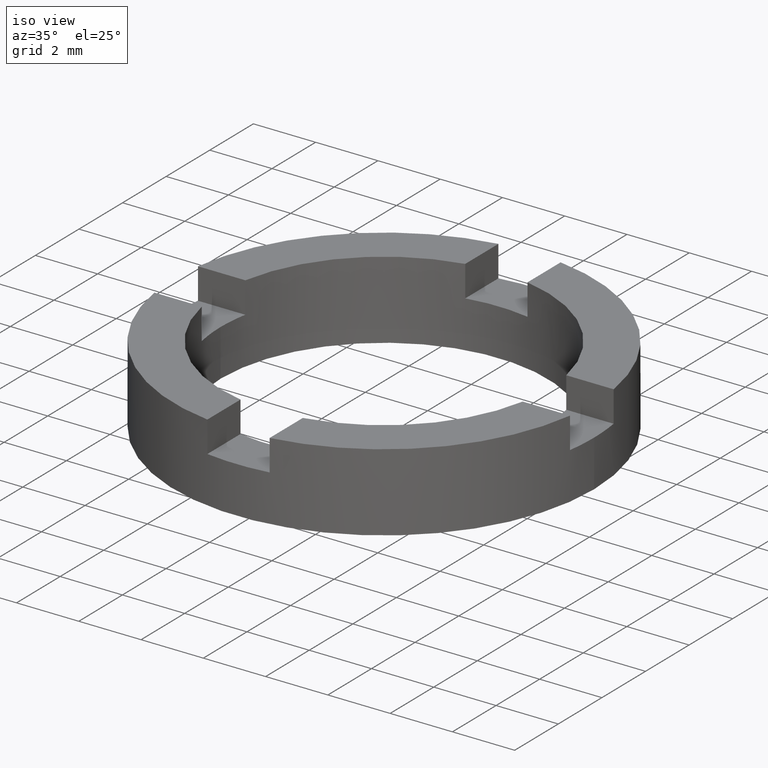
[diagram: clean part render]
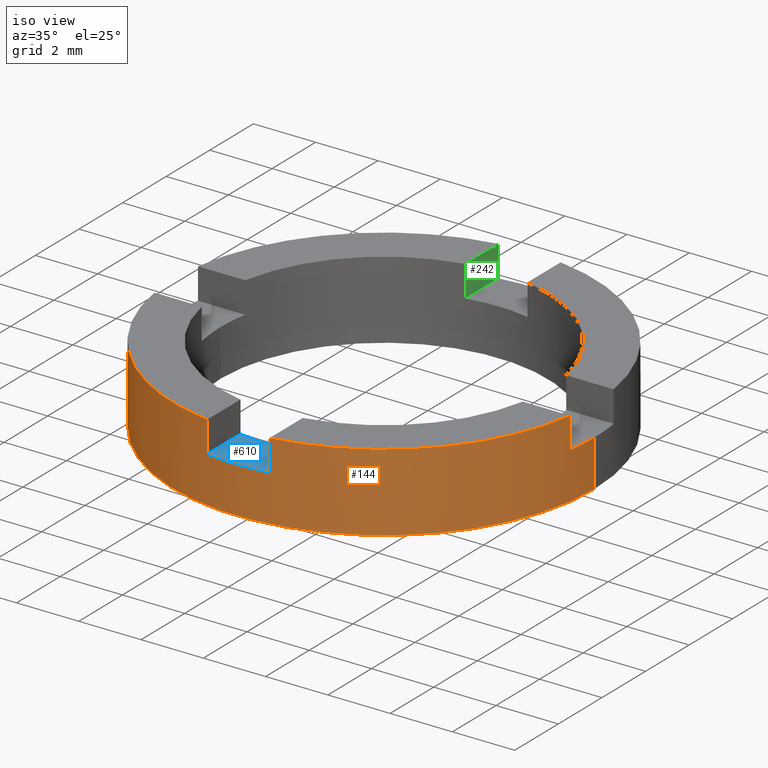
[diagram: same view with three faces highlighted in distinct colors, each labeled with its STEP entity id]
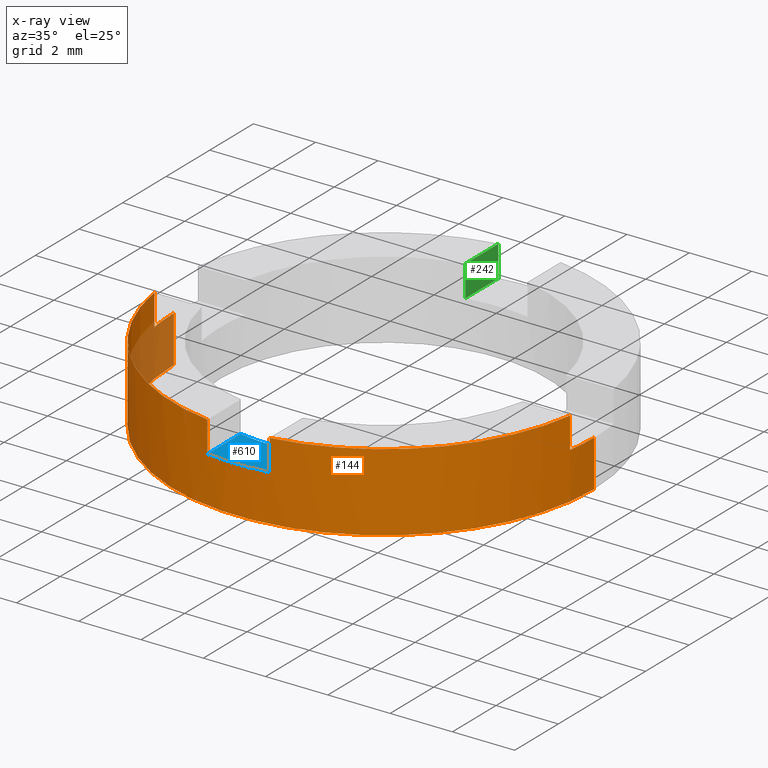
[diagram: x-ray of the same camera — body ghosted, the three highlighted faces saturated]
A machine part, iso view with three faces highlighted in distinct colors.
The next image is the same camera in x-ray (body ghosted, the three faces saturated) — at least one of them is partly hidden behind the body in this view.
Their STEP definitions:

[orange] entity #144 — the highlighted cylindrical surface (partial cylindrical patch) has radius 6.75 mm, axis along (-0, -0, -1).
#3 = DIRECTION ( 'NONE',  ( 0.000000000000000000, 0.000000000000000000, 1.000000000000000000 ) ) ;
#24 = CARTESIAN_POINT ( 'NONE',  ( 0.000000000000000000, 0.000000000000000000, 1.500000000000000000 ) ) ;
#25 = DIRECTION ( 'NONE',  ( 1.000000000000000000, 0.000000000000000000, 0.000000000000000000 ) ) ;
#35 = EDGE_CURVE ( 'NONE', #691, #446, #556, .T. ) ;
#38 = VERTEX_POINT ( 'NONE', #301 ) ;
#43 = AXIS2_PLACEMENT_3D ( 'NONE', #646, #766, #162 ) ;
#44 = LINE ( 'NONE', #652, #329 ) ;
#48 = LINE ( 'NONE', #218, #54 ) ;
#54 = VECTOR ( 'NONE', #160, 1000.000000000000000 ) ;
#68 = FACE_OUTER_BOUND ( 'NONE', #486, .T. ) ;
#77 = VECTOR ( 'NONE', #776, 1000.000000000000000 ) ;
#87 = DIRECTION ( 'NONE',  ( -0.000000000000000000, -0.000000000000000000, 1.000000000000000000 ) ) ;
#88 = LINE ( 'NONE', #655, #118 ) ;
#96 = VECTOR ( 'NONE', #667, 1000.000000000000000 ) ;
#108 = DIRECTION ( 'NONE',  ( 1.000000000000000000, 0.000000000000000000, 0.000000000000000000 ) ) ;
#109 = EDGE_CURVE ( 'NONE', #616, #487, #44, .T. ) ;
#110 = LINE ( 'NONE', #292, #77 ) ;
#116 = DIRECTION ( 'NONE',  ( -0.000000000000000000, -0.000000000000000000, 1.000000000000000000 ) ) ;
#118 = VECTOR ( 'NONE', #116, 1000.000000000000000 ) ;
#143 = AXIS2_PLACEMENT_3D ( 'NONE', #24, #500, #690 ) ;
#144 = ADVANCED_FACE ( 'NONE', ( #68 ), #559, .T. ) ;
#153 = ORIENTED_EDGE ( 'NONE', *, *, #545, .T. ) ;
#154 = EDGE_CURVE ( 'NONE', #461, #621, #48, .T. ) ;
#160 = DIRECTION ( 'NONE',  ( -0.000000000000000000, -0.000000000000000000, -1.000000000000000000 ) ) ;
#162 = DIRECTION ( 'NONE',  ( 1.000000000000000000, 0.000000000000000000, 0.000000000000000000 ) ) ;
#168 = CARTESIAN_POINT ( 'NONE',  ( 0.000000000000000000, 0.000000000000000000, 1.500000000000000000 ) ) ;
#177 = CARTESIAN_POINT ( 'NONE',  ( 6.675514961409340309, -1.000000000000025979, 2.500000000000000000 ) ) ;
#194 = EDGE_CURVE ( 'NONE', #691, #750, #303, .T. ) ;
#196 = VERTEX_POINT ( 'NONE', #273 ) ;
#203 = DIRECTION ( 'NONE',  ( 0.000000000000000000, 0.000000000000000000, 1.000000000000000000 ) ) ;
#211 = ORIENTED_EDGE ( 'NONE', *, *, #478, .F. ) ;
#218 = CARTESIAN_POINT ( 'NONE',  ( -6.750000000000000000, 0.000000000000000000, 2.500000000000000000 ) ) ;
#222 = AXIS2_PLACEMENT_3D ( 'NONE', #592, #3, #298 ) ;
#227 = CARTESIAN_POINT ( 'NONE',  ( -0.9999999999999986677, -6.675514961409343861, 2.500000000000000000 ) ) ;
#232 = ORIENTED_EDGE ( 'NONE', *, *, #194, .F. ) ;
#233 = ORIENTED_EDGE ( 'NONE', *, *, #498, .F. ) ;
#243 = ORIENTED_EDGE ( 'NONE', *, *, #611, .T. ) ;
#254 = CARTESIAN_POINT ( 'NONE',  ( 6.675514961409340309, -1.000000000000025979, 1.500000000000000000 ) ) ;
#263 = CARTESIAN_POINT ( 'NONE',  ( 0.000000000000000000, 0.000000000000000000, 1.500000000000000000 ) ) ;
#273 = CARTESIAN_POINT ( 'NONE',  ( -0.9999999999999986677, -6.675514961409343861, 1.500000000000000000 ) ) ;
#283 = CARTESIAN_POINT ( 'NONE',  ( 1.000000000000001332, -6.675514961409343861, 1.500000000000000000 ) ) ;
#292 = CARTESIAN_POINT ( 'NONE',  ( 6.750000000000000000, 8.266365894244634333E-16, 2.500000000000000000 ) ) ;
#295 = CARTESIAN_POINT ( 'NONE',  ( -0.9999999999999986677, -6.675514961409343861, 1.500000000000000000 ) ) ;
#297 = DIRECTION ( 'NONE',  ( 1.000000000000000000, 0.000000000000000000, 0.000000000000000000 ) ) ;
#298 = DIRECTION ( 'NONE',  ( 1.000000000000000000, 0.000000000000000000, 0.000000000000000000 ) ) ;
#301 = CARTESIAN_POINT ( 'NONE',  ( 1.000000000000001332, -6.675514961409343861, 2.500000000000000000 ) ) ;
#303 = CIRCLE ( 'NONE', #143, 6.750000000000000000 ) ;
#311 = EDGE_CURVE ( 'NONE', #461, #616, #349, .T. ) ;
#329 = VECTOR ( 'NONE', #396, 1000.000000000000000 ) ;
#336 = VERTEX_POINT ( 'NONE', #550 ) ;
#337 = DIRECTION ( 'NONE',  ( -0.000000000000000000, 0.000000000000000000, 1.000000000000000000 ) ) ;
#340 = VECTOR ( 'NONE', #87, 1000.000000000000000 ) ;
#349 = CIRCLE ( 'NONE', #756, 6.750000000000000000 ) ;
#354 = CARTESIAN_POINT ( 'NONE',  ( -6.750000000000000000, 0.000000000000000000, 1.500000000000000000 ) ) ;
#364 = CIRCLE ( 'NONE', #490, 6.750000000000000000 ) ;
#365 = CARTESIAN_POINT ( 'NONE',  ( -6.675514961409347414, -0.9999999999999761302, 2.500000000000000000 ) ) ;
#366 = LINE ( 'NONE', #295, #96 ) ;
#372 = CIRCLE ( 'NONE', #669, 6.750000000000000000 ) ;
#381 = VERTEX_POINT ( 'NONE', #227 ) ;
#396 = DIRECTION ( 'NONE',  ( -0.000000000000000000, -0.000000000000000000, 1.000000000000000000 ) ) ;
#408 = ORIENTED_EDGE ( 'NONE', *, *, #109, .F. ) ;
#410 = ORIENTED_EDGE ( 'NONE', *, *, #741, .F. ) ;
#416 = CARTESIAN_POINT ( 'NONE',  ( -6.675514961409347414, -0.9999999999999761302, 1.500000000000000000 ) ) ;
#431 = CARTESIAN_POINT ( 'NONE',  ( 6.750000000000000000, 8.266365894244634333E-16, 1.500000000000000000 ) ) ;
#442 = AXIS2_PLACEMENT_3D ( 'NONE', #698, #625, #685 ) ;
#443 = EDGE_CURVE ( 'NONE', #650, #38, #88, .T. ) ;
#446 = VERTEX_POINT ( 'NONE', #177 ) ;
#461 = VERTEX_POINT ( 'NONE', #354 ) ;
#476 = ORIENTED_EDGE ( 'NONE', *, *, #154, .T. ) ;
#478 = EDGE_CURVE ( 'NONE', #38, #446, #607, .T. ) ;
#485 = ORIENTED_EDGE ( 'NONE', *, *, #733, .F. ) ;
#486 = EDGE_LOOP ( 'NONE', ( #485, #232, #728, #211, #709, #233, #243, #410, #408, #763, #476, #153 ) ) ;
#487 = VERTEX_POINT ( 'NONE', #365 ) ;
#490 = AXIS2_PLACEMENT_3D ( 'NONE', #263, #682, #297 ) ;
#498 = EDGE_CURVE ( 'NONE', #196, #650, #364, .T. ) ;
#500 = DIRECTION ( 'NONE',  ( -0.000000000000000000, 0.000000000000000000, 1.000000000000000000 ) ) ;
#545 = EDGE_CURVE ( 'NONE', #621, #336, #372, .T. ) ;
#550 = CARTESIAN_POINT ( 'NONE',  ( 6.750000000000000000, 8.266365894244634333E-16, 0.000000000000000000 ) ) ;
#556 = LINE ( 'NONE', #254, #340 ) ;
#559 = CYLINDRICAL_SURFACE ( 'NONE', #442, 6.750000000000000000 ) ;
#566 = CARTESIAN_POINT ( 'NONE',  ( 6.675514961409340309, -1.000000000000025979, 1.500000000000000000 ) ) ;
#592 = CARTESIAN_POINT ( 'NONE',  ( 0.000000000000000000, 0.000000000000000000, 2.500000000000000000 ) ) ;
#607 = CIRCLE ( 'NONE', #43, 6.750000000000000000 ) ;
#611 = EDGE_CURVE ( 'NONE', #196, #381, #366, .T. ) ;
#616 = VERTEX_POINT ( 'NONE', #416 ) ;
#621 = VERTEX_POINT ( 'NONE', #721 ) ;
#625 = DIRECTION ( 'NONE',  ( -0.000000000000000000, -0.000000000000000000, -1.000000000000000000 ) ) ;
#646 = CARTESIAN_POINT ( 'NONE',  ( 0.000000000000000000, 0.000000000000000000, 2.500000000000000000 ) ) ;
#650 = VERTEX_POINT ( 'NONE', #283 ) ;
#652 = CARTESIAN_POINT ( 'NONE',  ( -6.675514961409347414, -0.9999999999999761302, 1.500000000000000000 ) ) ;
#654 = CIRCLE ( 'NONE', #222, 6.750000000000000000 ) ;
#655 = CARTESIAN_POINT ( 'NONE',  ( 1.000000000000001332, -6.675514961409343861, 1.500000000000000000 ) ) ;
#667 = DIRECTION ( 'NONE',  ( -0.000000000000000000, -0.000000000000000000, 1.000000000000000000 ) ) ;
#669 = AXIS2_PLACEMENT_3D ( 'NONE', #739, #203, #108 ) ;
#682 = DIRECTION ( 'NONE',  ( -0.000000000000000000, 0.000000000000000000, 1.000000000000000000 ) ) ;
#685 = DIRECTION ( 'NONE',  ( -1.000000000000000000, 0.000000000000000000, 0.000000000000000000 ) ) ;
#690 = DIRECTION ( 'NONE',  ( 1.000000000000000000, 0.000000000000000000, 0.000000000000000000 ) ) ;
#691 = VERTEX_POINT ( 'NONE', #566 ) ;
#698 = CARTESIAN_POINT ( 'NONE',  ( 0.000000000000000000, 0.000000000000000000, 2.500000000000000000 ) ) ;
#709 = ORIENTED_EDGE ( 'NONE', *, *, #443, .F. ) ;
#721 = CARTESIAN_POINT ( 'NONE',  ( -6.750000000000000000, 0.000000000000000000, 0.000000000000000000 ) ) ;
#728 = ORIENTED_EDGE ( 'NONE', *, *, #35, .T. ) ;
#733 = EDGE_CURVE ( 'NONE', #750, #336, #110, .T. ) ;
#739 = CARTESIAN_POINT ( 'NONE',  ( 0.000000000000000000, 0.000000000000000000, 0.000000000000000000 ) ) ;
#741 = EDGE_CURVE ( 'NONE', #487, #381, #654, .T. ) ;
#750 = VERTEX_POINT ( 'NONE', #431 ) ;
#756 = AXIS2_PLACEMENT_3D ( 'NONE', #168, #337, #25 ) ;
#763 = ORIENTED_EDGE ( 'NONE', *, *, #311, .F. ) ;
#766 = DIRECTION ( 'NONE',  ( 0.000000000000000000, 0.000000000000000000, 1.000000000000000000 ) ) ;
#776 = DIRECTION ( 'NONE',  ( -0.000000000000000000, -0.000000000000000000, -1.000000000000000000 ) ) ;

[blue] entity #610 — the highlighted planar face has unit normal (-0, 0, 1).
#47 = CARTESIAN_POINT ( 'NONE',  ( 0.000000000000000000, 0.000000000000000000, 1.500000000000000000 ) ) ;
#80 = VECTOR ( 'NONE', #235, 1000.000000000000000 ) ;
#86 = CARTESIAN_POINT ( 'NONE',  ( 1.000000000000001332, 0.000000000000000000, 1.500000000000000000 ) ) ;
#89 = CARTESIAN_POINT ( 'NONE',  ( -0.9999999999999986677, -5.153882032022075954, 1.500000000000000000 ) ) ;
#159 = EDGE_CURVE ( 'NONE', #650, #201, #570, .T. ) ;
#170 = CARTESIAN_POINT ( 'NONE',  ( -0.9999999999999986677, 0.000000000000000000, 1.500000000000000000 ) ) ;
#172 = ORIENTED_EDGE ( 'NONE', *, *, #684, .T. ) ;
#185 = PLANE ( 'NONE',  #224 ) ;
#196 = VERTEX_POINT ( 'NONE', #273 ) ;
#201 = VERTEX_POINT ( 'NONE', #697 ) ;
#223 = ORIENTED_EDGE ( 'NONE', *, *, #498, .T. ) ;
#224 = AXIS2_PLACEMENT_3D ( 'NONE', #246, #558, #701 ) ;
#228 = VERTEX_POINT ( 'NONE', #89 ) ;
#235 = DIRECTION ( 'NONE',  ( 0.000000000000000000, 1.000000000000000000, -0.000000000000000000 ) ) ;
#246 = CARTESIAN_POINT ( 'NONE',  ( 0.000000000000000000, 0.000000000000000000, 1.500000000000000000 ) ) ;
#263 = CARTESIAN_POINT ( 'NONE',  ( 0.000000000000000000, 0.000000000000000000, 1.500000000000000000 ) ) ;
#273 = CARTESIAN_POINT ( 'NONE',  ( -0.9999999999999986677, -6.675514961409343861, 1.500000000000000000 ) ) ;
#283 = CARTESIAN_POINT ( 'NONE',  ( 1.000000000000001332, -6.675514961409343861, 1.500000000000000000 ) ) ;
#297 = DIRECTION ( 'NONE',  ( 1.000000000000000000, 0.000000000000000000, 0.000000000000000000 ) ) ;
#352 = LINE ( 'NONE', #170, #80 ) ;
#364 = CIRCLE ( 'NONE', #490, 6.750000000000000000 ) ;
#378 = EDGE_CURVE ( 'NONE', #196, #228, #352, .T. ) ;
#421 = DIRECTION ( 'NONE',  ( 1.000000000000000000, 0.000000000000000000, 0.000000000000000000 ) ) ;
#430 = ORIENTED_EDGE ( 'NONE', *, *, #378, .F. ) ;
#468 = DIRECTION ( 'NONE',  ( 0.000000000000000000, -0.000000000000000000, -1.000000000000000000 ) ) ;
#482 = EDGE_LOOP ( 'NONE', ( #430, #223, #553, #172 ) ) ;
#490 = AXIS2_PLACEMENT_3D ( 'NONE', #263, #682, #297 ) ;
#498 = EDGE_CURVE ( 'NONE', #196, #650, #364, .T. ) ;
#552 = AXIS2_PLACEMENT_3D ( 'NONE', #47, #468, #421 ) ;
#553 = ORIENTED_EDGE ( 'NONE', *, *, #159, .T. ) ;
#558 = DIRECTION ( 'NONE',  ( -0.000000000000000000, 0.000000000000000000, 1.000000000000000000 ) ) ;
#570 = LINE ( 'NONE', #86, #574 ) ;
#574 = VECTOR ( 'NONE', #644, 1000.000000000000000 ) ;
#610 = ADVANCED_FACE ( 'NONE', ( #615 ), #185, .T. ) ;
#615 = FACE_OUTER_BOUND ( 'NONE', #482, .T. ) ;
#627 = CIRCLE ( 'NONE', #552, 5.250000000000000000 ) ;
#644 = DIRECTION ( 'NONE',  ( 0.000000000000000000, 1.000000000000000000, -0.000000000000000000 ) ) ;
#650 = VERTEX_POINT ( 'NONE', #283 ) ;
#682 = DIRECTION ( 'NONE',  ( -0.000000000000000000, 0.000000000000000000, 1.000000000000000000 ) ) ;
#684 = EDGE_CURVE ( 'NONE', #201, #228, #627, .T. ) ;
#697 = CARTESIAN_POINT ( 'NONE',  ( 1.000000000000001332, -5.153882032022075066, 1.500000000000000000 ) ) ;
#701 = DIRECTION ( 'NONE',  ( 1.000000000000000000, 0.000000000000000000, 0.000000000000000000 ) ) ;

[green] entity #242 — the highlighted planar face has unit normal (1, 0, 0).
#8 = EDGE_CURVE ( 'NONE', #459, #230, #312, .T. ) ;
#56 = FACE_OUTER_BOUND ( 'NONE', #714, .T. ) ;
#62 = LINE ( 'NONE', #161, #587 ) ;
#161 = CARTESIAN_POINT ( 'NONE',  ( -0.9999999999999986677, 0.000000000000000000, 1.500000000000000000 ) ) ;
#164 = ORIENTED_EDGE ( 'NONE', *, *, #8, .F. ) ;
#173 = CARTESIAN_POINT ( 'NONE',  ( -0.9999999999999986677, 6.675514961409343861, 1.500000000000000000 ) ) ;
#176 = ORIENTED_EDGE ( 'NONE', *, *, #404, .F. ) ;
#214 = DIRECTION ( 'NONE',  ( 0.000000000000000000, 0.000000000000000000, -1.000000000000000000 ) ) ;
#230 = VERTEX_POINT ( 'NONE', #269 ) ;
#238 = DIRECTION ( 'NONE',  ( -0.000000000000000000, -0.000000000000000000, 1.000000000000000000 ) ) ;
#242 = ADVANCED_FACE ( 'NONE', ( #56 ), #439, .T. ) ;
#269 = CARTESIAN_POINT ( 'NONE',  ( -0.9999999999999986677, 6.675514961409343861, 2.500000000000000000 ) ) ;
#288 = DIRECTION ( 'NONE',  ( -0.000000000000000000, -0.000000000000000000, 1.000000000000000000 ) ) ;
#294 = EDGE_CURVE ( 'NONE', #581, #727, #62, .T. ) ;
#312 = LINE ( 'NONE', #546, #317 ) ;
#317 = VECTOR ( 'NONE', #677, 1000.000000000000000 ) ;
#325 = AXIS2_PLACEMENT_3D ( 'NONE', #538, #543, #214 ) ;
#331 = ORIENTED_EDGE ( 'NONE', *, *, #294, .T. ) ;
#367 = VECTOR ( 'NONE', #238, 1000.000000000000000 ) ;
#374 = LINE ( 'NONE', #571, #613 ) ;
#404 = EDGE_CURVE ( 'NONE', #581, #459, #374, .T. ) ;
#407 = CARTESIAN_POINT ( 'NONE',  ( -0.9999999999999986677, 5.153882032022075954, 1.500000000000000000 ) ) ;
#439 = PLANE ( 'NONE',  #325 ) ;
#440 = ORIENTED_EDGE ( 'NONE', *, *, #700, .T. ) ;
#459 = VERTEX_POINT ( 'NONE', #522 ) ;
#522 = CARTESIAN_POINT ( 'NONE',  ( -0.9999999999999986677, 5.153882032022075954, 2.500000000000000000 ) ) ;
#538 = CARTESIAN_POINT ( 'NONE',  ( -0.9999999999999986677, 0.000000000000000000, 1.500000000000000000 ) ) ;
#543 = DIRECTION ( 'NONE',  ( 1.000000000000000000, 0.000000000000000000, 0.000000000000000000 ) ) ;
#546 = CARTESIAN_POINT ( 'NONE',  ( -0.9999999999999986677, 0.000000000000000000, 2.500000000000000000 ) ) ;
#571 = CARTESIAN_POINT ( 'NONE',  ( -0.9999999999999986677, 5.153882032022075954, 1.500000000000000000 ) ) ;
#581 = VERTEX_POINT ( 'NONE', #407 ) ;
#587 = VECTOR ( 'NONE', #765, 1000.000000000000000 ) ;
#613 = VECTOR ( 'NONE', #288, 1000.000000000000000 ) ;
#634 = LINE ( 'NONE', #173, #367 ) ;
#677 = DIRECTION ( 'NONE',  ( 0.000000000000000000, 1.000000000000000000, -0.000000000000000000 ) ) ;
#700 = EDGE_CURVE ( 'NONE', #727, #230, #634, .T. ) ;
#714 = EDGE_LOOP ( 'NONE', ( #164, #176, #331, #440 ) ) ;
#727 = VERTEX_POINT ( 'NONE', #729 ) ;
#729 = CARTESIAN_POINT ( 'NONE',  ( -0.9999999999999986677, 6.675514961409343861, 1.500000000000000000 ) ) ;
#765 = DIRECTION ( 'NONE',  ( 0.000000000000000000, 1.000000000000000000, -0.000000000000000000 ) ) ;